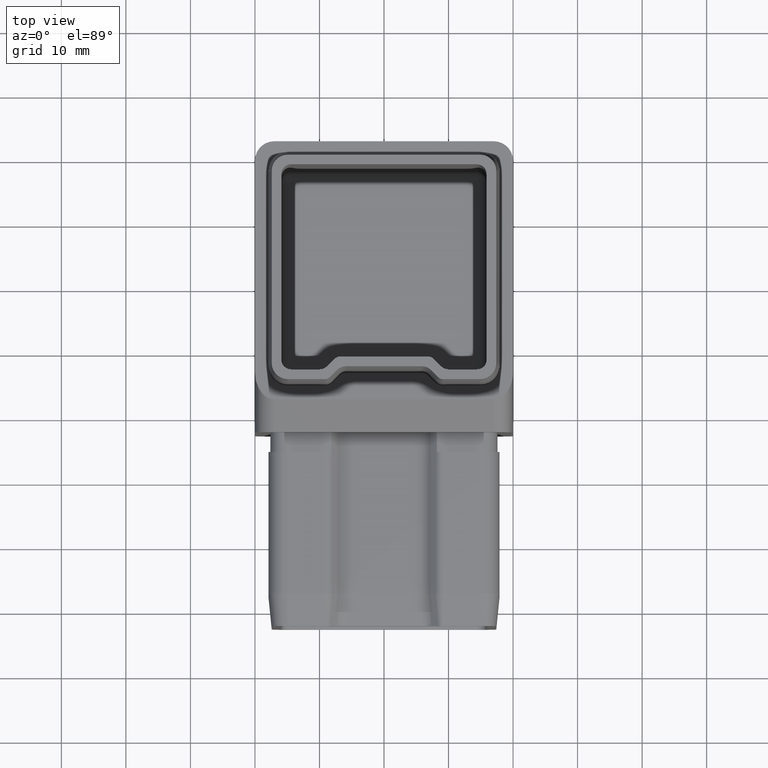
[diagram: clean part render]
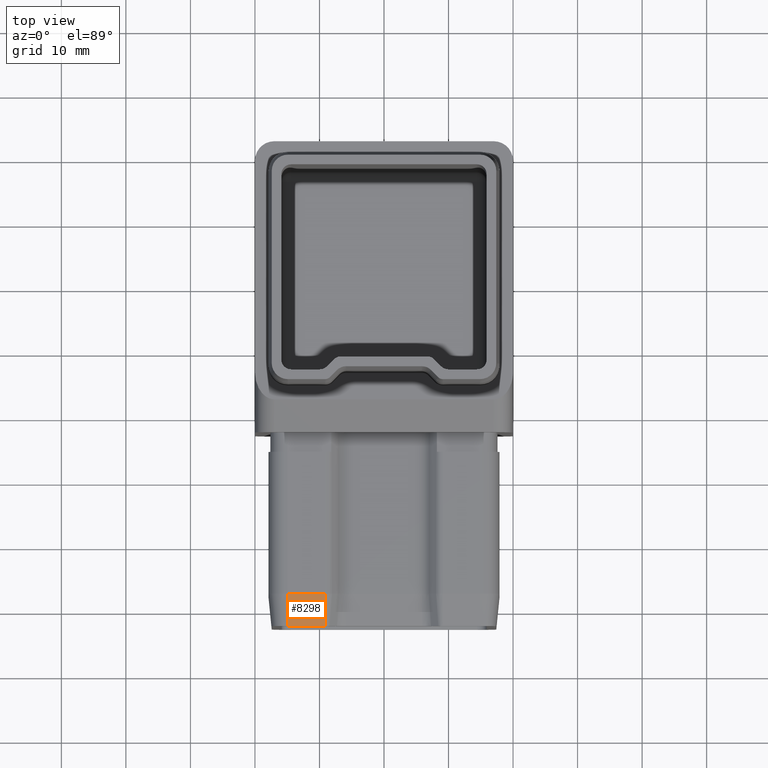
[diagram: same view with one face highlighted and labeled with its STEP entity id]
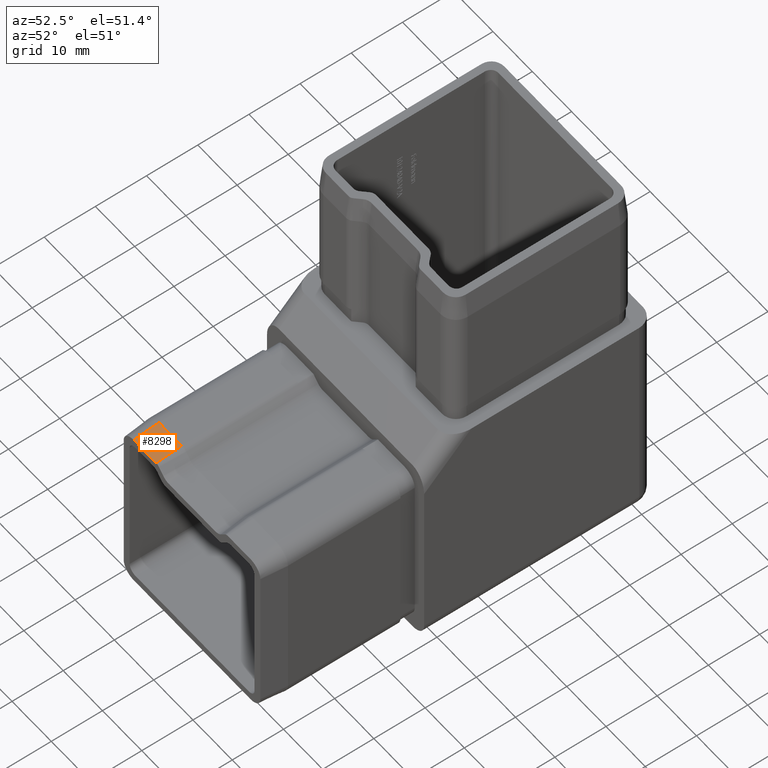
[diagram: same view with one face highlighted and labeled with its STEP entity id]
A machine part, top view. The second image highlights one B-rep face of the part: STEP entity #8298.
A second angle (auxiliary view) of the same face is appended — the face is thin or edge-on in the first view.
In plain terms, the highlighted planar face has unit normal (0, -0.0995, 0.995).
Its self-contained STEP definition (entity closure, byte-faithful):
#157 = EDGE_CURVE ( 'NONE', #2885, #9708, #10583, .T. ) ;
#173 = CARTESIAN_POINT ( 'NONE',  ( -14.90000000000000600, -52.50000000000001400, 14.89999999999998100 ) ) ;
#1592 = ORIENTED_EDGE ( 'NONE', *, *, #19169, .F. ) ;
#1852 = DIRECTION ( 'NONE',  ( 2.987039386070670200E-016, -0.09950371902100016400, 0.9950371902099890400 ) ) ;
#2044 = CARTESIAN_POINT ( 'NONE',  ( -9.121320343559647300, -52.50000000000001400, 14.89999999999997900 ) ) ;
#2332 = CARTESIAN_POINT ( 'NONE',  ( -14.90000000000000900, -47.50000000000001400, 15.39999999999998600 ) ) ;
#2885 = VERTEX_POINT ( 'NONE', #13124 ) ;
#3629 = LINE ( 'NONE', #2044, #21960 ) ;
#4696 = ORIENTED_EDGE ( 'NONE', *, *, #157, .T. ) ;
#6548 = VERTEX_POINT ( 'NONE', #14795 ) ;
#6708 = ORIENTED_EDGE ( 'NONE', *, *, #13615, .F. ) ;
#7083 = VERTEX_POINT ( 'NONE', #26023 ) ;
#7537 = EDGE_CURVE ( 'NONE', #7083, #2885, #9187, .T. ) ;
#7921 = CARTESIAN_POINT ( 'NONE',  ( -9.121320343559647300, -52.50000000000001400, 14.89999999999997900 ) ) ;
#7992 = VECTOR ( 'NONE', #11195, 1000.000000000000000 ) ;
#8298 = ADVANCED_FACE ( 'NONE', ( #20102 ), #20191, .T. ) ;
#9187 = LINE ( 'NONE', #7921, #24922 ) ;
#9708 = VERTEX_POINT ( 'NONE', #2332 ) ;
#10583 = LINE ( 'NONE', #23218, #7992 ) ;
#11195 = DIRECTION ( 'NONE',  ( -1.000000000000000000, 0.0000000000000000000, 3.001937430539953400E-016 ) ) ;
#11838 = EDGE_LOOP ( 'NONE', ( #15085, #4696, #6708, #1592 ) ) ;
#11849 = DIRECTION ( 'NONE',  ( -4.093947403305264200E-016, 0.9950371902099889300, 0.09950371902100015000 ) ) ;
#12445 = DIRECTION ( 'NONE',  ( -4.093947403305264200E-016, 0.9950371902099889300, 0.09950371902100015000 ) ) ;
#13124 = CARTESIAN_POINT ( 'NONE',  ( -9.121320343559650800, -47.50000000000001400, 15.39999999999998400 ) ) ;
#13615 = EDGE_CURVE ( 'NONE', #6548, #9708, #15008, .T. ) ;
#14428 = DIRECTION ( 'NONE',  ( -1.000000000000000000, 0.0000000000000000000, 3.001937430539953400E-016 ) ) ;
#14795 = CARTESIAN_POINT ( 'NONE',  ( -14.90000000000000600, -52.50000000000001400, 14.89999999999998100 ) ) ;
#15008 = LINE ( 'NONE', #173, #15326 ) ;
#15085 = ORIENTED_EDGE ( 'NONE', *, *, #7537, .T. ) ;
#15326 = VECTOR ( 'NONE', #12445, 1000.000000000000100 ) ;
#19169 = EDGE_CURVE ( 'NONE', #7083, #6548, #3629, .T. ) ;
#20018 = AXIS2_PLACEMENT_3D ( 'NONE', #20363, #1852, #24298 ) ;
#20102 = FACE_OUTER_BOUND ( 'NONE', #11838, .T. ) ;
#20191 = PLANE ( 'NONE',  #20018 ) ;
#20363 = CARTESIAN_POINT ( 'NONE',  ( -9.121320343559647300, -52.50000000000001400, 14.89999999999997900 ) ) ;
#21960 = VECTOR ( 'NONE', #14428, 1000.000000000000000 ) ;
#23218 = CARTESIAN_POINT ( 'NONE',  ( -9.121320343559650800, -47.50000000000001400, 15.39999999999998400 ) ) ;
#24298 = DIRECTION ( 'NONE',  ( 0.0000000000000000000, -0.9950371902099889300, -0.09950371902100015000 ) ) ;
#24922 = VECTOR ( 'NONE', #11849, 1000.000000000000100 ) ;
#26023 = CARTESIAN_POINT ( 'NONE',  ( -9.121320343559647300, -52.50000000000001400, 14.89999999999997900 ) ) ;